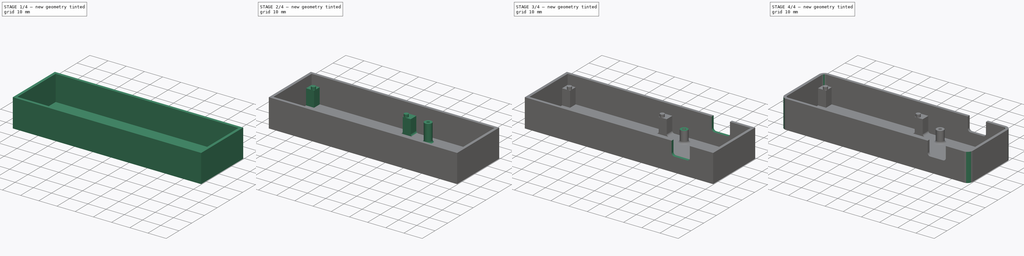
[diagram: build sequence overview — one tinted view per stage of 4, left to right]
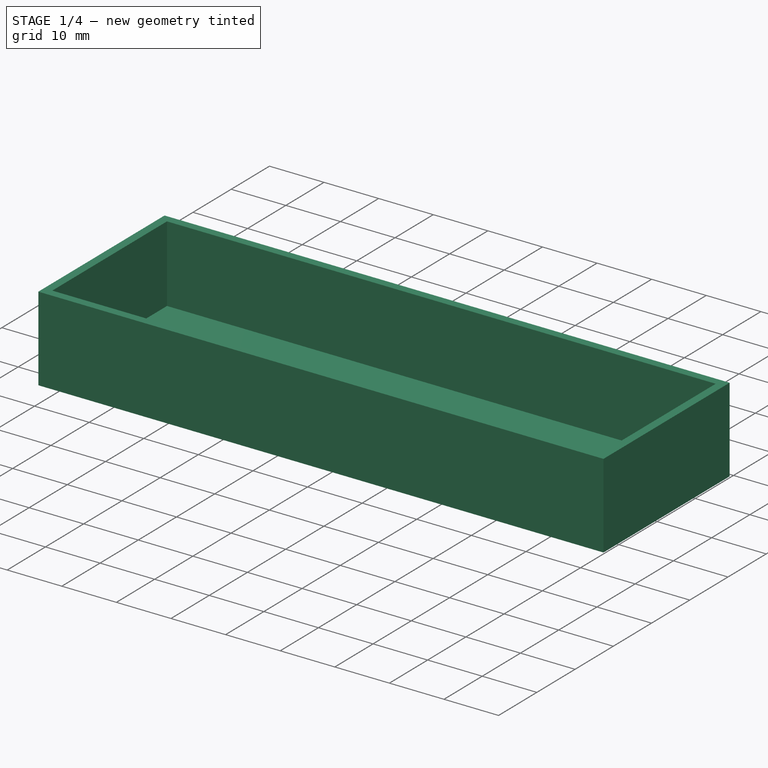
[diagram: stage 1 of 4 — iso view after this stage's code; geometry added in this stage tinted green]
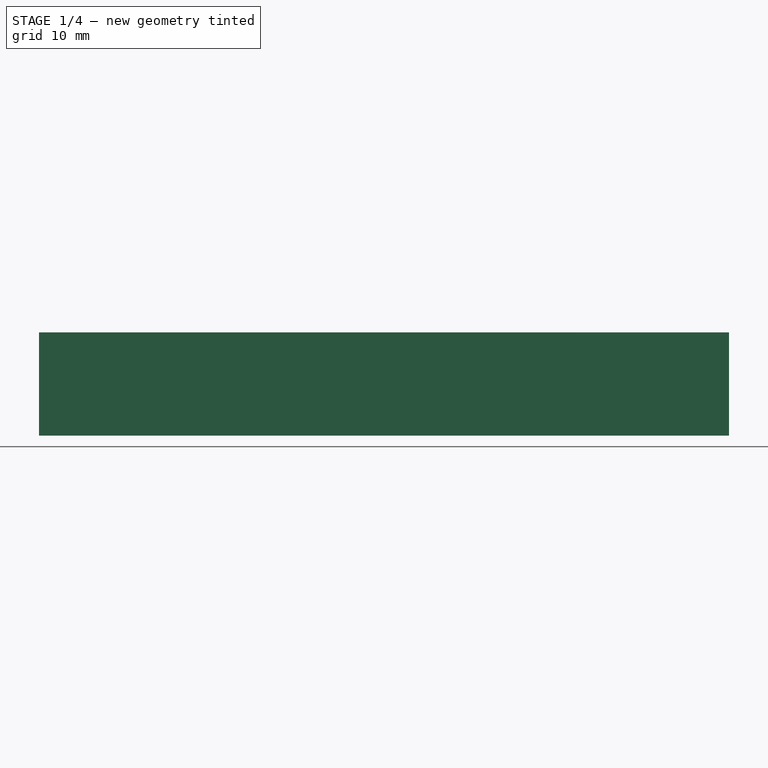
[diagram: stage 1 of 4 — front view after this stage's code; geometry added in this stage tinted green]
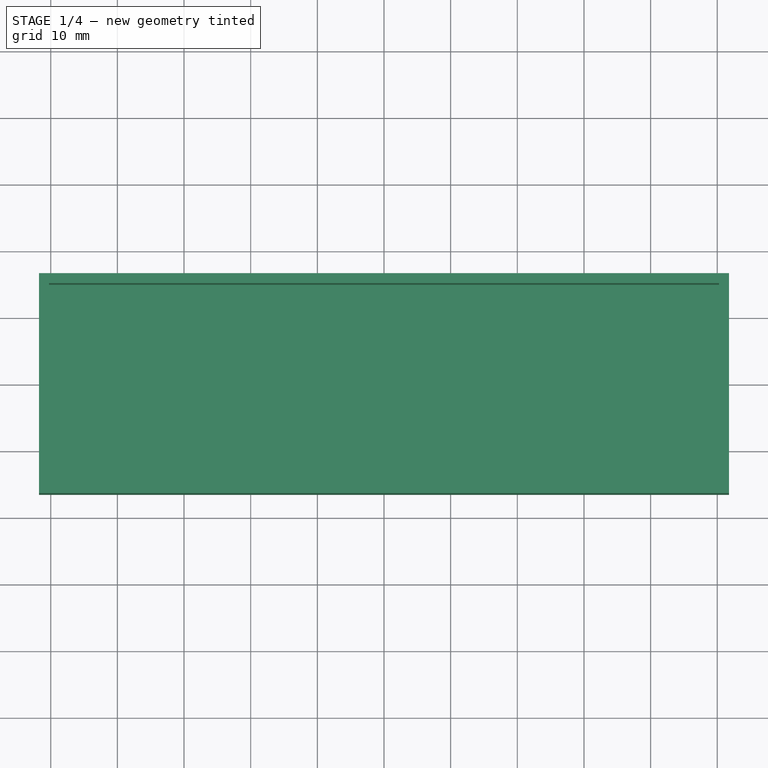
[diagram: stage 1 of 4 — top view after this stage's code; geometry added in this stage tinted green]
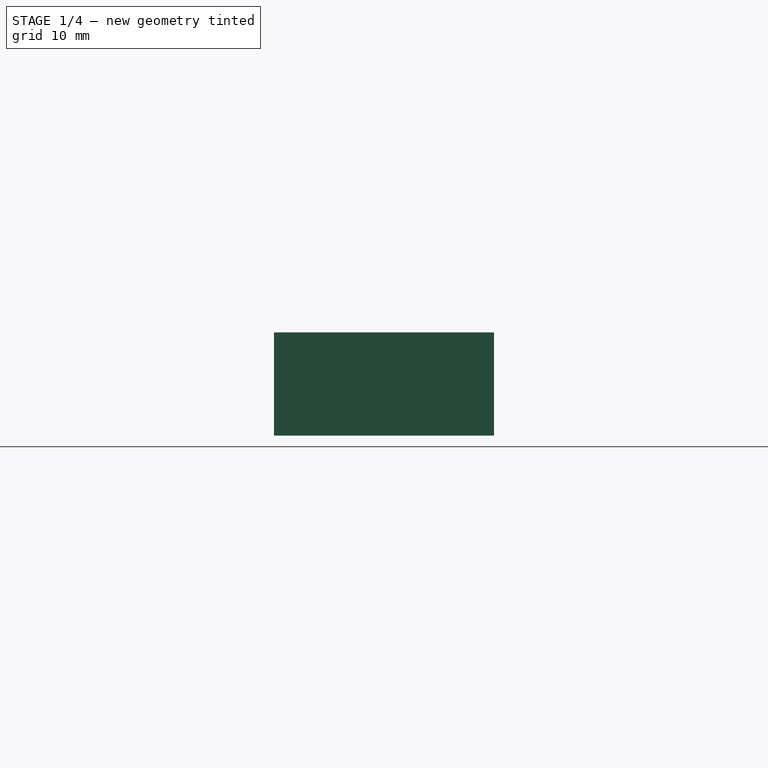
[diagram: stage 1 of 4 — right view after this stage's code; geometry added in this stage tinted green]
FCSTD DOCUMENT  (FreeCAD 0.19R23463 (Git))
Label: light-alarm-housing
License: All rights reserved
LicenseURL: http://en.wikipedia.org/wiki/All_rights_reserved
objects: Sketcher::SketchObject×7, PartDesign::Pad×4, PartDesign::Fillet×4, PartDesign::Pocket×2, Spreadsheet::Sheet×1, PartDesign::Body×1
note: 28 computed .brp shape members not serialized (recipe doc carries the construction recipe); baked Part::Feature solids carry a one-line shape summary decoded from their .brp

FEATURE [Sketcher::SketchObject] Sketch  label="MasterSketch"
  MapMode = 5
  Support = -> [XY_Plane]
  expr: Constraints[115] = Spreadsheet.wall_thickness
  expr: Constraints[89] = Spreadsheet.screw_dia
  expr: Constraints[84] = Spreadsheet.grove_height / 4 * 3
  expr: Constraints[85] = Spreadsheet.grove_outer_dia
  expr: Constraints[36] = Spreadsheet.hole_long_distance
  expr: Constraints[33] = Spreadsheet.hole_short_distance / 2
  expr: Constraints[79] = Spreadsheet.board_gap
  expr: Constraints[55] = Spreadsheet.board_width
  expr: Constraints[45] = Spreadsheet.board_hook_dia
  expr: Constraints[75] = Spreadsheet.grove_height
  expr: Constraints[37] = Spreadsheet.screw_dia
  expr: Constraints[65] = Spreadsheet.wall_thickness + Spreadsheet.board_gap
  expr: Constraints[54] = Spreadsheet.board_length
  expr: Constraints[74] = Spreadsheet.grove_width
  sketch-geometry (60):
    g0: LineSegment StartX=-51.75 StartY=16.5 StartZ=0 EndX=51.75 EndY=16.5 EndZ=0
    g1: LineSegment StartX=51.75 StartY=16.5 StartZ=0 EndX=51.75 EndY=-16.5 EndZ=0
    g2: LineSegment StartX=51.75 StartY=-16.5 StartZ=0 EndX=-51.75 EndY=-16.5 EndZ=0
    g3: LineSegment StartX=-51.75 StartY=-16.5 StartZ=0 EndX=-51.75 EndY=16.5 EndZ=0
    g4: Circle CenterX=-47 CenterY=11.75 CenterZ=0 NormalX=0 NormalY=0 NormalZ=1 AngleXU=0 Radius=0.75
    g5: Circle CenterX=-47 CenterY=-11.75 CenterZ=0 NormalX=0 NormalY=0 NormalZ=1 AngleXU=0 Radius=0.75
    g6: Circle CenterX=4 CenterY=11.75 CenterZ=0 NormalX=0 NormalY=0 NormalZ=1 AngleXU=0 Radius=0.75
    g7: Circle CenterX=4 CenterY=-11.75 CenterZ=0 NormalX=0 NormalY=0 NormalZ=1 AngleXU=0 Radius=0.75
    g8: LineSegment StartX=-47 StartY=11.75 StartZ=0 EndX=-47 EndY=16.5 EndZ=0
    g9: LineSegment StartX=-47 StartY=11.75 StartZ=0 EndX=-51.75 EndY=11.75 EndZ=0
    g10: LineSegment StartX=4 StartY=11.75 StartZ=0 EndX=4 EndY=16.5 EndZ=0
    g11: LineSegment StartX=4 StartY=11.75 StartZ=0 EndX=51.75 EndY=11.75 EndZ=0
    g12: LineSegment StartX=-47 StartY=11.75 StartZ=0 EndX=-47 EndY=0 EndZ=0
    g13: LineSegment StartX=4 StartY=11.75 StartZ=0 EndX=4 EndY=0 EndZ=0
    g14: LineSegment StartX=-47 StartY=11.75 StartZ=0 EndX=4 EndY=11.75 EndZ=0
    g15: Circle CenterX=-47 CenterY=11.75 CenterZ=0 NormalX=0 NormalY=0 NormalZ=1 AngleXU=0 Radius=1.15
    g16: Circle CenterX=-47 CenterY=-11.75 CenterZ=0 NormalX=0 NormalY=0 NormalZ=1 AngleXU=0 Radius=1.15
    g17: Circle CenterX=4 CenterY=-11.75 CenterZ=0 NormalX=0 NormalY=0 NormalZ=1 AngleXU=0 Radius=1.15
    g18: Circle CenterX=4 CenterY=11.75 CenterZ=0 NormalX=0 NormalY=0 NormalZ=1 AngleXU=0 Radius=1.15
    g19: LineSegment StartX=-49.25 StartY=14.1 StartZ=0 EndX=6.25 EndY=14.1 EndZ=0
    g20: LineSegment StartX=6.25 StartY=14.1 StartZ=0 EndX=6.25 EndY=-14.1 EndZ=0
    g21: LineSegment StartX=6.25 StartY=-14.1 StartZ=0 EndX=-49.25 EndY=-14.1 EndZ=0
    g22: LineSegment StartX=-49.25 StartY=-14.1 StartZ=0 EndX=-49.25 EndY=14.1 EndZ=0
    g23: LineSegment StartX=-47 StartY=-11.75 StartZ=0 EndX=-49.25 EndY=-11.75 EndZ=0
    g24: LineSegment StartX=4 StartY=-11.75 StartZ=0 EndX=6.25 EndY=-11.75 EndZ=0
    g25: LineSegment StartX=-49.25 StartY=-14.1 StartZ=0 EndX=-51.75 EndY=-14.1 EndZ=0
    g26: LineSegment StartX=7.25 StartY=10 StartZ=0 EndX=47.25 EndY=10 EndZ=0
    g27: LineSegment StartX=47.25 StartY=10 StartZ=0 EndX=47.25 EndY=-10 EndZ=0
    g28: LineSegment StartX=47.25 StartY=-10 StartZ=0 EndX=7.25 EndY=-10 EndZ=0
    g29: LineSegment StartX=7.25 StartY=-10 StartZ=0 EndX=7.25 EndY=10 EndZ=0
    g30: LineSegment StartX=7.25 StartY=-10 StartZ=0 EndX=6.25 EndY=-10 EndZ=0
    g31: Circle CenterX=17.25 CenterY=10 CenterZ=0 NormalX=0 NormalY=0 NormalZ=1 AngleXU=0 Radius=2
    g32: Circle CenterX=17.25 CenterY=-10 CenterZ=0 NormalX=0 NormalY=0 NormalZ=1 AngleXU=0 Radius=2
    g33: Circle CenterX=17.25 CenterY=-10 CenterZ=0 NormalX=0 NormalY=0 NormalZ=1 AngleXU=0 Radius=0.75
    g34: Circle CenterX=17.25 CenterY=10 CenterZ=0 NormalX=0 NormalY=0 NormalZ=1 AngleXU=0 Radius=0.75
    g35: Circle CenterX=47.25 CenterY=0 CenterZ=0 NormalX=0 NormalY=0 NormalZ=1 AngleXU=0 Radius=2
    g36: Circle CenterX=47.25 CenterY=0 CenterZ=0 NormalX=0 NormalY=0 NormalZ=1 AngleXU=0 Radius=0.75
    g37: LineSegment StartX=49.25 StartY=0 StartZ=0 EndX=51.75 EndY=0 EndZ=0
    g38: LineSegment StartX=-50.25 StartY=15 StartZ=0 EndX=50.25 EndY=15 EndZ=0
    g39: LineSegment StartX=50.25 StartY=15 StartZ=0 EndX=50.25 EndY=-15 EndZ=0
    g40: LineSegment StartX=50.25 StartY=-15 StartZ=0 EndX=-50.25 EndY=-15 EndZ=0
    g41: LineSegment StartX=-50.25 StartY=-15 StartZ=0 EndX=-50.25 EndY=15 EndZ=0
    g42: LineSegment StartX=-50.25 StartY=15 StartZ=0 EndX=-51.75 EndY=15 EndZ=0
    g43: LineSegment StartX=-50.25 StartY=15 StartZ=0 EndX=-50.25 EndY=16.5 EndZ=0
    g44: LineSegment StartX=-50.25 StartY=15 StartZ=0 EndX=-45.85 EndY=15 EndZ=0
    g45: LineSegment StartX=-45.85 StartY=15 StartZ=0 EndX=-45.85 EndY=10.6 EndZ=0
    g46: LineSegment StartX=-45.85 StartY=10.6 StartZ=0 EndX=-50.25 EndY=10.6 EndZ=0
    g47: LineSegment StartX=-50.25 StartY=10.6 StartZ=0 EndX=-50.25 EndY=15 EndZ=0
    g48: LineSegment StartX=-50.25 StartY=-15 StartZ=0 EndX=-45.85 EndY=-15 EndZ=0
    g49: LineSegment StartX=-45.85 StartY=-15 StartZ=0 EndX=-45.85 EndY=-10.6 EndZ=0
    g50: LineSegment StartX=-45.85 StartY=-10.6 StartZ=0 EndX=-50.25 EndY=-10.6 EndZ=0
    g51: LineSegment StartX=-50.25 StartY=-10.6 StartZ=0 EndX=-50.25 EndY=-15 EndZ=0
    g52: LineSegment StartX=7.25 StartY=15 StartZ=0 EndX=2.85 EndY=15 EndZ=0
    g53: LineSegment StartX=2.85 StartY=15 StartZ=0 EndX=2.85 EndY=10.6 EndZ=0
    g54: LineSegment StartX=2.85 StartY=10.6 StartZ=0 EndX=7.25 EndY=10.6 EndZ=0
    g55: LineSegment StartX=7.25 StartY=10.6 StartZ=0 EndX=7.25 EndY=15 EndZ=0
    g56: LineSegment StartX=7.25 StartY=-15 StartZ=0 EndX=2.85 EndY=-15 EndZ=0
    g57: LineSegment StartX=2.85 StartY=-15 StartZ=0 EndX=2.85 EndY=-10.6 EndZ=0
    g58: LineSegment StartX=2.85 StartY=-10.6 StartZ=0 EndX=7.25 EndY=-10.6 EndZ=0
    g59: LineSegment StartX=7.25 StartY=-10.6 StartZ=0 EndX=7.25 EndY=-15 EndZ=0
  constraints (163):
    c: Coincident(g0,g1)
    c: Coincident(g1,g2)
    c: Coincident(g2,g3)
    c: Coincident(g3,g0)
    c: Horizontal(g2)
    c: Vertical(g1)
    c: Symmetric(g0,g0,g-2)
    c: Symmetric(g0,g2,g-1)
    c: Equal(g5,g4)
    c: Equal(g6,g4)
    c: Equal(g4,g7)
    c: Symmetric(g4,g5,g-1)
    c: Symmetric(g6,g7,g-1)
    c: Coincident(g8,g4)
    c: PointOnObject(g8,g0)
    c: Vertical(g8)
    c: Coincident(g9,g4)
    c: PointOnObject(g9,g3)
    c: Horizontal(g9)
    c: Coincident(g10,g6)
    c: PointOnObject(g10,g0)
    c: Vertical(g10)
    c: Coincident(g11,g6)
    c: PointOnObject(g11,g1)
    c: Horizontal(g11)
    c: Equal(g8,g9)
    c: Coincident(g12,g4)
    c: Vertical(g12)
    c: Coincident(g13,g6)
    c: PointOnObject(g13,g-1)
    c: Vertical(g13)
    c: Equal(g13,g12)
    c: PointOnObject(g12,g-1)
    c: Distance(g12) = 11.75
    c: Coincident(g14,g4)
    c: Coincident(g14,g6)
    c: Distance(g14) = 51
    c: Diameter(g5) = 1.5
    c: Coincident(g15,g4)
    c: Coincident(g16,g5)
    c: Coincident(g17,g7)
    c: Coincident(g18,g6)
    c: Equal(g18,g17)
    c: Equal(g17,g15)
    c: Equal(g15,g16)
    c: Diameter(g16) = 2.3
    c: Coincident(g19,g20)
    c: Coincident(g20,g21)
    c: Coincident(g21,g22)
    c: Coincident(g22,g19)
    c: Horizontal(g19)
    c: Horizontal(g21)
    c: Vertical(g20)
    c: Symmetric(g19,g21,g-1)
    c: Distance(g19,g19) = 55.5
    c: Distance(g20) = 28.2
    c: Coincident(g23,g5)
    c: PointOnObject(g23,g22)
    c: Horizontal(g23)
    c: Coincident(g24,g7)
    c: PointOnObject(g24,g20)
    c: Horizontal(g24)
    c: Equal(g24,g23)
    c: PointOnObject(g25,g3)
    c: Horizontal(g25)
    c: Distance(g25) = 2.5
    c: Coincident(g25,g21)
    c: Coincident(g26,g27)
    c: Coincident(g27,g28)
    c: Coincident(g28,g29)
    c: Coincident(g29,g26)
    c: Horizontal(g26)
    c: Horizontal(g28)
    c: Vertical(g27)
    c: Distance(g27) = 20
    c: Distance(g28) = 40
    c: Coincident(g30,g28)
    c: PointOnObject(g30,g20)
    c: Horizontal(g30)
    c: Distance(g30) = 1
    c: Symmetric(g26,g28,g-1)
    c: PointOnObject(g31,g26)
    c: Equal(g32,g31)
    c: Symmetric(g31,g32,g-1)
    c: Distance(g31,g26) = 30
    c: Diameter(g32) = 4
    c: Coincident(g33,g32)
    c: Coincident(g34,g31)
    c: Equal(g34,g33)
    c: Diameter(g33) = 1.5
    c: PointOnObject(g35,g27)
    c: Coincident(g36,g35)
    c: Equal(g36,g34)
    c: Equal(g35,g31)
    c: PointOnObject(g35,g-1)
    c: PointOnObject(g37,g35)
    c: PointOnObject(g37,g1)
    c: Horizontal(g37)
    c: PointOnObject(g37,g-1)
    c: Equal(g37,g25)
    c: Coincident(g38,g39)
    c: Coincident(g39,g40)
    c: Coincident(g40,g41)
    c: Coincident(g41,g38)
    c: Horizontal(g40)
    c: Vertical(g41)
    c: Symmetric(g39,g38,g-1)
    c: Symmetric(g38,g38,g-2)
    c: Coincident(g42,g38)
    c: PointOnObject(g42,g3)
    c: Coincident(g43,g38)
    c: PointOnObject(g43,g0)
    c: Vertical(g43)
    c: Horizontal(g42)
    c: Equal(g43,g42)
    c: Distance(g43) = 1.5
    c: Coincident(g44,g45)
    c: Coincident(g45,g46)
    c: Coincident(g46,g47)
    c: Coincident(g47,g44)
    c: Horizontal(g44)
    c: Horizontal(g46)
    c: Vertical(g45)
    c: Vertical(g47)
    c: Coincident(g44,g38)
    c: Coincident(g48,g49)
    c: Coincident(g49,g50)
    c: Coincident(g50,g51)
    c: Coincident(g51,g48)
    c: Horizontal(g48)
    c: Horizontal(g50)
    c: Vertical(g49)
    c: Vertical(g51)
    c: PointOnObject(g50,g41)
    c: PointOnObject(g48,g40)
    c: Tangent(g15,g45)
    c: Tangent(g46,g15)
    c: Tangent(g50,g16)
    c: Tangent(g49,g16)
    c: Coincident(g52,g53)
    c: Coincident(g53,g54)
    c: Coincident(g54,g55)
    c: Coincident(g55,g52)
    c: Horizontal(g52)
    c: Horizontal(g54)
    c: Vertical(g53)
    c: Vertical(g55)
    c: PointOnObject(g52,g38)
    c: Coincident(g56,g57)
    c: Coincident(g57,g58)
    c: Coincident(g58,g59)
    c: Coincident(g59,g56)
    c: Horizontal(g56)
    c: Horizontal(g58)
    c: Vertical(g57)
    c: Vertical(g59)
    c: PointOnObject(g56,g40)
    c: Tangent(g57,g17)
    c: Tangent(g58,g17)
    c: Tangent(g54,g18)
    c: Tangent(g53,g18)
    c: Equal(g54,g58)
    c: Equal(g58,g50)
FEATURE [Spreadsheet::Sheet] Spreadsheet
  cells = A2=hole short distance; B2(hole_short_distance)=23.5; A3=hole long distance; B3(hole_long_distance)=51; A4=screw dia; B4(screw_dia)=1.5; A5=wall thickness; B5(wall_thickness)=1.5; A6=screw walls; B6(wall_screws)=2.5; A7=board width; B7(board_width)=28.2; A8=board length; B8(board_length)=55.5; A9=gap; B9(board_gap)=1; A10=grove width; B10(grove_width)=20; A11=grove height; B11(grove_height)=40; A12=grove outer dia; B12(grove_outer_dia)=4; A13=board clearance; B13(board_clearance)=8.5; A14=board height; B14(board_height)=14; A15=board hook dia; B15(board_hook_dia)=2.3; A16=board thickness; B16(board_thickness)=1.5; A17=grove clearance; B17(grove_clearance)=5
FEATURE [Sketcher::SketchObject] Sketch001
  ExternalGeometry = -> [Sketch]
  MapMode = 5
  Support = -> [XY_Plane]
  sketch-geometry (4):
    g0: LineSegment StartX=-51.75 StartY=16.5 StartZ=0 EndX=51.75 EndY=16.5 EndZ=0
    g1: LineSegment StartX=51.75 StartY=16.5 StartZ=0 EndX=51.75 EndY=-16.5 EndZ=0
    g2: LineSegment StartX=51.75 StartY=-16.5 StartZ=0 EndX=-51.75 EndY=-16.5 EndZ=0
    g3: LineSegment StartX=-51.75 StartY=-16.5 StartZ=0 EndX=-51.75 EndY=16.5 EndZ=0
  constraints (10):
    c: Coincident(g0,g1)
    c: Coincident(g1,g2)
    c: Coincident(g2,g3)
    c: Coincident(g3,g0)
    c: Horizontal(g0)
    c: Horizontal(g2)
    c: Vertical(g1)
    c: Vertical(g3)
    c: Symmetric(g1,g0,g-1)
    c: Coincident(g0,g-3)
FEATURE [PartDesign::Pad] Pad
  Direction = (1,1,1)
  Length = 1.5
  Length2 = 100
  Profile = -> Sketch001
  Reversed = true
  Type = 0
  expr: Length = Spreadsheet.wall_thickness
FEATURE [Sketcher::SketchObject] Sketch002
  ExternalGeometry = -> [Sketch]
  MapMode = 5
  Support = -> [Pad]
  sketch-geometry (8):
    g0: LineSegment StartX=-50.25 StartY=15 StartZ=0 EndX=50.25 EndY=15 EndZ=0
    g1: LineSegment StartX=50.25 StartY=15 StartZ=0 EndX=50.25 EndY=-15 EndZ=0
    g2: LineSegment StartX=50.25 StartY=-15 StartZ=0 EndX=-50.25 EndY=-15 EndZ=0
    g3: LineSegment StartX=-50.25 StartY=-15 StartZ=0 EndX=-50.25 EndY=15 EndZ=0
    g4: LineSegment StartX=-51.75 StartY=16.5 StartZ=0 EndX=51.75 EndY=16.5 EndZ=0
    g5: LineSegment StartX=51.75 StartY=16.5 StartZ=0 EndX=51.75 EndY=-16.5 EndZ=0
    g6: LineSegment StartX=51.75 StartY=-16.5 StartZ=0 EndX=-51.75 EndY=-16.5 EndZ=0
    g7: LineSegment StartX=-51.75 StartY=-16.5 StartZ=0 EndX=-51.75 EndY=16.5 EndZ=0
  constraints (20):
    c: Coincident(g0,g1)
    c: Coincident(g1,g2)
    c: Coincident(g2,g3)
    c: Coincident(g3,g0)
    c: Horizontal(g0)
    c: Horizontal(g2)
    c: Vertical(g1)
    c: Vertical(g3)
    c: Coincident(g0,g-4)
    c: Coincident(g4,g5)
    c: Coincident(g5,g6)
    c: Coincident(g6,g7)
    c: Coincident(g7,g4)
    c: Horizontal(g4)
    c: Horizontal(g6)
    c: Vertical(g5)
    c: Vertical(g7)
    c: Coincident(g4,g-3)
    c: Symmetric(g1,g0,g-1)
    c: Symmetric(g4,g5,g-1)
FEATURE [PartDesign::Pad] Pad001
  BaseFeature = -> Pad
  Direction = (1,1,1)
  Length = 14
  Length2 = 100
  Profile = -> Sketch002
  Type = 0
  expr: Length = Spreadsheet.board_height
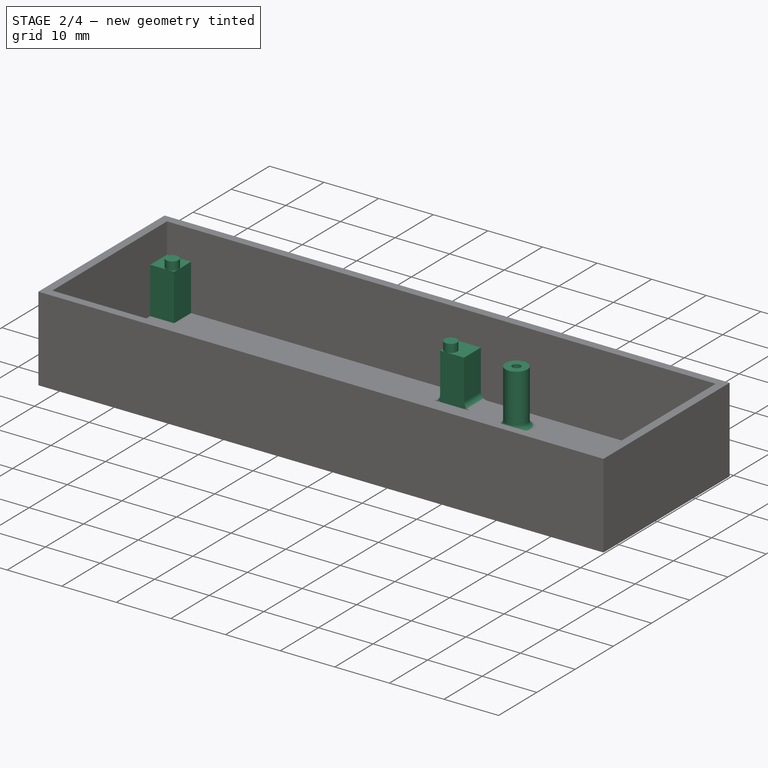
[diagram: stage 2 of 4 — iso view after this stage's code; geometry added in this stage tinted green]
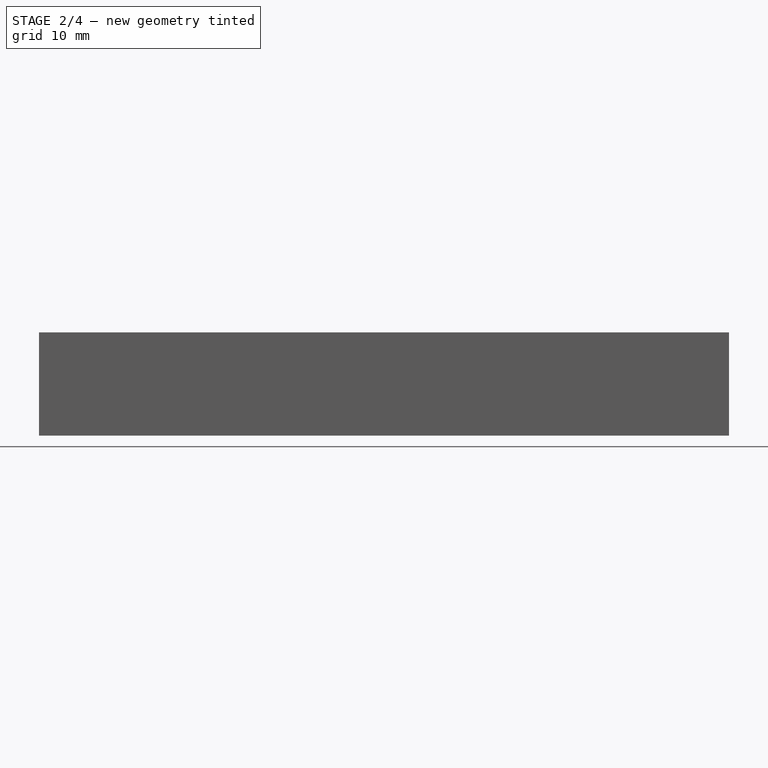
[diagram: stage 2 of 4 — front view after this stage's code; geometry added in this stage tinted green]
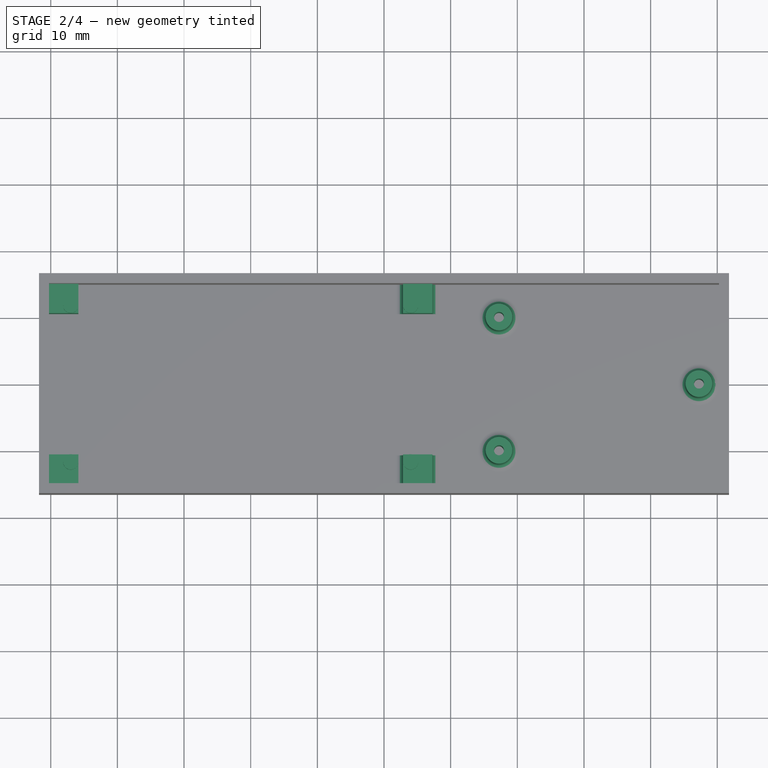
[diagram: stage 2 of 4 — top view after this stage's code; geometry added in this stage tinted green]
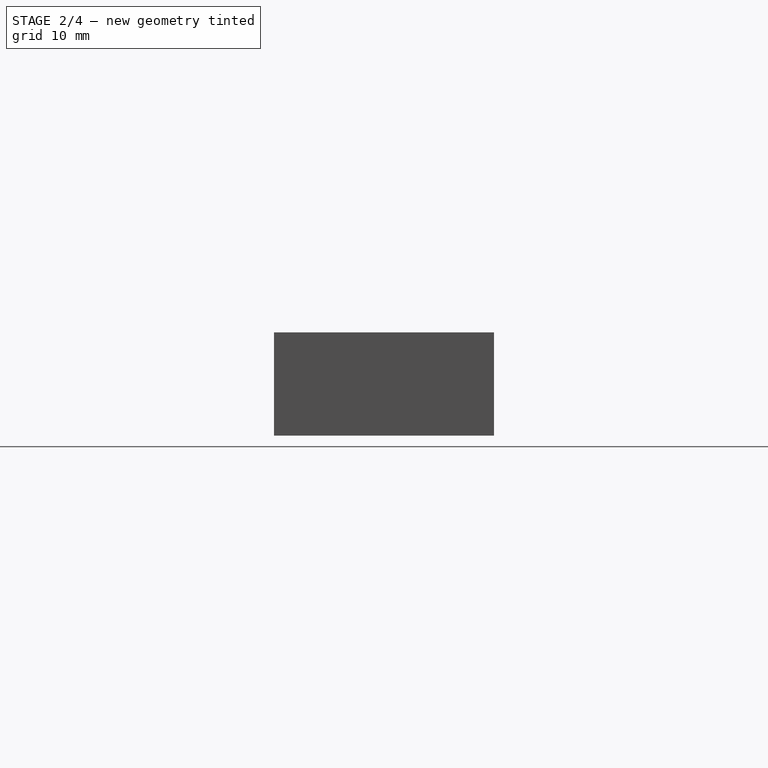
[diagram: stage 2 of 4 — right view after this stage's code; geometry added in this stage tinted green]
FEATURE [Sketcher::SketchObject] Sketch003
  ExternalGeometry = -> [Sketch]
  MapMode = 5
  Support = -> [Pad001]
  sketch-geometry (10):
    g0: Circle CenterX=4 CenterY=-11.75 CenterZ=0 NormalX=0 NormalY=0 NormalZ=1 AngleXU=0 Radius=1.15
    g1: Circle CenterX=-47 CenterY=-11.75 CenterZ=0 NormalX=0 NormalY=0 NormalZ=1 AngleXU=0 Radius=1.15
    g2: Circle CenterX=-47 CenterY=11.75 CenterZ=0 NormalX=0 NormalY=0 NormalZ=1 AngleXU=0 Radius=1.15
    g3: Circle CenterX=4 CenterY=11.75 CenterZ=0 NormalX=0 NormalY=0 NormalZ=1 AngleXU=0 Radius=1.15
    g4: Circle CenterX=17.25 CenterY=10 CenterZ=0 NormalX=0 NormalY=0 NormalZ=1 AngleXU=0 Radius=2
    g5: Circle CenterX=17.25 CenterY=10 CenterZ=0 NormalX=0 NormalY=0 NormalZ=1 AngleXU=0 Radius=0.75
    g6: Circle CenterX=17.25 CenterY=-10 CenterZ=0 NormalX=0 NormalY=0 NormalZ=1 AngleXU=0 Radius=0.75
    g7: Circle CenterX=17.25 CenterY=-10 CenterZ=0 NormalX=0 NormalY=0 NormalZ=1 AngleXU=0 Radius=2
    g8: Circle CenterX=47.25 CenterY=0 CenterZ=0 NormalX=0 NormalY=0 NormalZ=1 AngleXU=0 Radius=0.75
    g9: Circle CenterX=47.25 CenterY=0 CenterZ=0 NormalX=0 NormalY=0 NormalZ=1 AngleXU=0 Radius=2
  constraints (20):
    c: Coincident(g0,g-5)
    c: Coincident(g1,g-4)
    c: Coincident(g2,g-3)
    c: Coincident(g3,g-6)
    c: Equal(g3,g-6)
    c: Equal(g2,g1)
    c: Equal(g1,g0)
    c: Equal(g3,g0)
    c: Coincident(g4,g-10)
    c: Coincident(g5,g4)
    c: Coincident(g6,g-8)
    c: Coincident(g7,g6)
    c: Coincident(g8,g-12)
    c: Coincident(g9,g8)
    c: Equal(g6,g5)
    c: Equal(g5,g8)
    c: Equal(g8,g-9)
    c: Equal(g4,g7)
    c: Equal(g7,g9)
    c: Equal(g9,g-10)
FEATURE [PartDesign::Pad] Pad002
  BaseFeature = -> Pad001
  Direction = (1,1,1)
  Length = 10
  Length2 = 100
  Profile = -> Sketch003
  Type = 0
  expr: Length = Spreadsheet.board_clearance + Spreadsheet.board_thickness
FEATURE [Sketcher::SketchObject] Sketch004
  ExternalGeometry = -> [Sketch,Pad002]
  MapMode = 5
  Support = -> [Pad002]
  sketch-geometry (16):
    g0: LineSegment StartX=-45.85 StartY=10.6 StartZ=0 EndX=-50.25 EndY=10.6 EndZ=0
    g1: LineSegment StartX=-50.25 StartY=10.6 StartZ=0 EndX=-50.25 EndY=15 EndZ=0
    g2: LineSegment StartX=-50.25 StartY=15 StartZ=0 EndX=-45.85 EndY=15 EndZ=0
    g3: LineSegment StartX=-45.85 StartY=15 StartZ=0 EndX=-45.85 EndY=10.6 EndZ=0
    g4: LineSegment StartX=-45.85 StartY=-10.6 StartZ=0 EndX=-50.25 EndY=-10.6 EndZ=0
    g5: LineSegment StartX=-50.25 StartY=-10.6 StartZ=0 EndX=-50.25 EndY=-15 EndZ=0
    g6: LineSegment StartX=-50.25 StartY=-15 StartZ=0 EndX=-45.85 EndY=-15 EndZ=0
    g7: LineSegment StartX=-45.85 StartY=-15 StartZ=0 EndX=-45.85 EndY=-10.6 EndZ=0
    g8: LineSegment StartX=2.85 StartY=10.6 StartZ=0 EndX=7.25 EndY=10.6 EndZ=0
    g9: LineSegment StartX=7.25 StartY=10.6 StartZ=0 EndX=7.25 EndY=15 EndZ=0
    g10: LineSegment StartX=7.25 StartY=15 StartZ=0 EndX=2.85 EndY=15 EndZ=0
    g11: LineSegment StartX=2.85 StartY=15 StartZ=0 EndX=2.85 EndY=10.6 EndZ=0
    g12: LineSegment StartX=2.85 StartY=-10.6 StartZ=0 EndX=7.25 EndY=-10.6 EndZ=0
    g13: LineSegment StartX=7.25 StartY=-10.6 StartZ=0 EndX=7.25 EndY=-15 EndZ=0
    g14: LineSegment StartX=7.25 StartY=-15 StartZ=0 EndX=2.85 EndY=-15 EndZ=0
    g15: LineSegment StartX=2.85 StartY=-15 StartZ=0 EndX=2.85 EndY=-10.6 EndZ=0
  constraints (40):
    c: Coincident(g0,g1)
    c: Coincident(g1,g2)
    c: Coincident(g2,g3)
    c: Coincident(g3,g0)
    c: Horizontal(g0)
    c: Horizontal(g2)
    c: Vertical(g1)
    c: Vertical(g3)
    c: Coincident(g0,g-3)
    c: Coincident(g1,g-7)
    c: Coincident(g4,g5)
    c: Coincident(g5,g6)
    c: Coincident(g6,g7)
    c: Coincident(g7,g4)
    c: Horizontal(g4)
    c: Horizontal(g6)
    c: Vertical(g5)
    c: Vertical(g7)
    c: Coincident(g4,g-4)
    c: Coincident(g5,g-10)
    c: Coincident(g8,g9)
    c: Coincident(g9,g10)
    c: Coincident(g10,g11)
    c: Coincident(g11,g8)
    c: Horizontal(g8)
    c: Horizontal(g10)
    c: Vertical(g9)
    c: Vertical(g11)
    c: Coincident(g8,g-8)
    c: Coincident(g9,g-12)
    c: Coincident(g12,g13)
    c: Coincident(g13,g14)
    c: Coincident(g14,g15)
    c: Coincident(g15,g12)
    c: Horizontal(g12)
    c: Horizontal(g14)
    c: Vertical(g13)
    c: Vertical(g15)
    c: Coincident(g12,g-9)
    c: Coincident(g13,g-11)
FEATURE [PartDesign::Pad] Pad003
  BaseFeature = -> Pad002
  Direction = (1,1,1)
  Length = 8.5
  Length2 = 100
  Profile = -> Sketch004
  Type = 0
  expr: Length = Spreadsheet.board_clearance
FEATURE [PartDesign::Fillet] Fillet
  Base = -> Pad003 [Edge72,Edge73,Edge71,Edge58,Edge57,Edge67,Edge66,Edge54,Edge70]
  BaseFeature = -> Pad003
  Radius = 1.15
  SupportTransform = false
  expr: Radius = Spreadsheet.board_hook_dia / 2
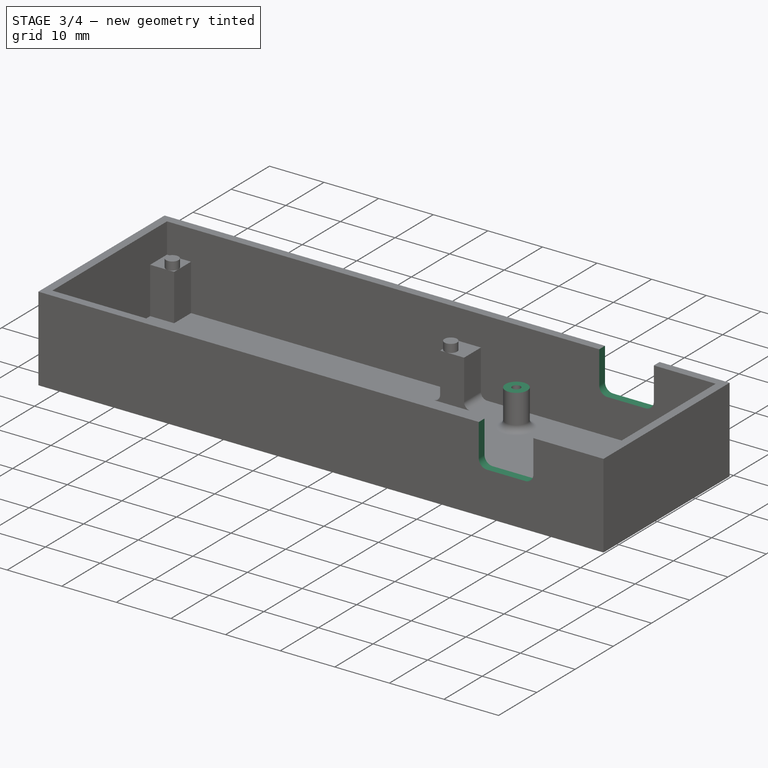
[diagram: stage 3 of 4 — iso view after this stage's code; geometry added in this stage tinted green]
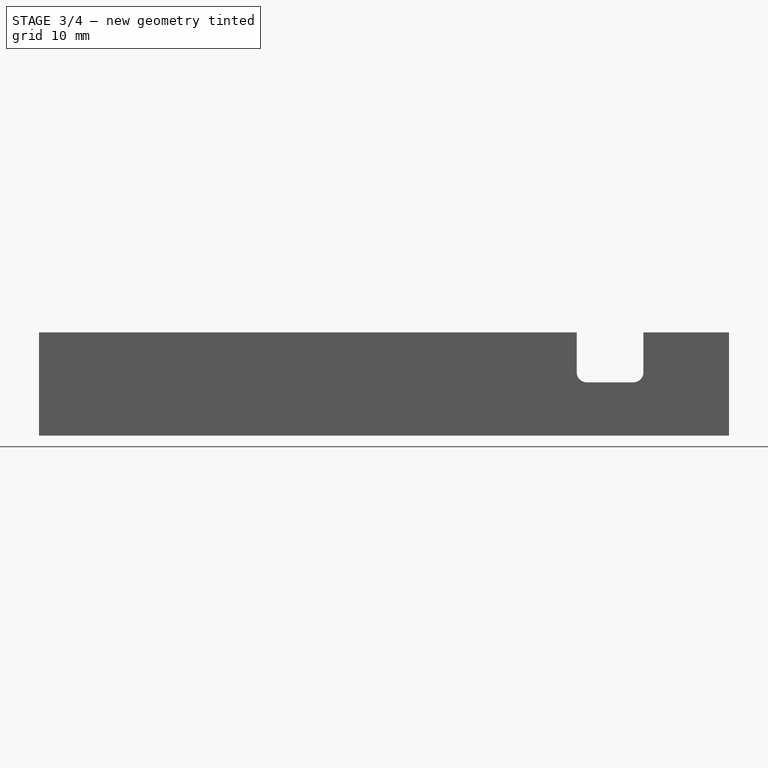
[diagram: stage 3 of 4 — front view after this stage's code; geometry added in this stage tinted green]
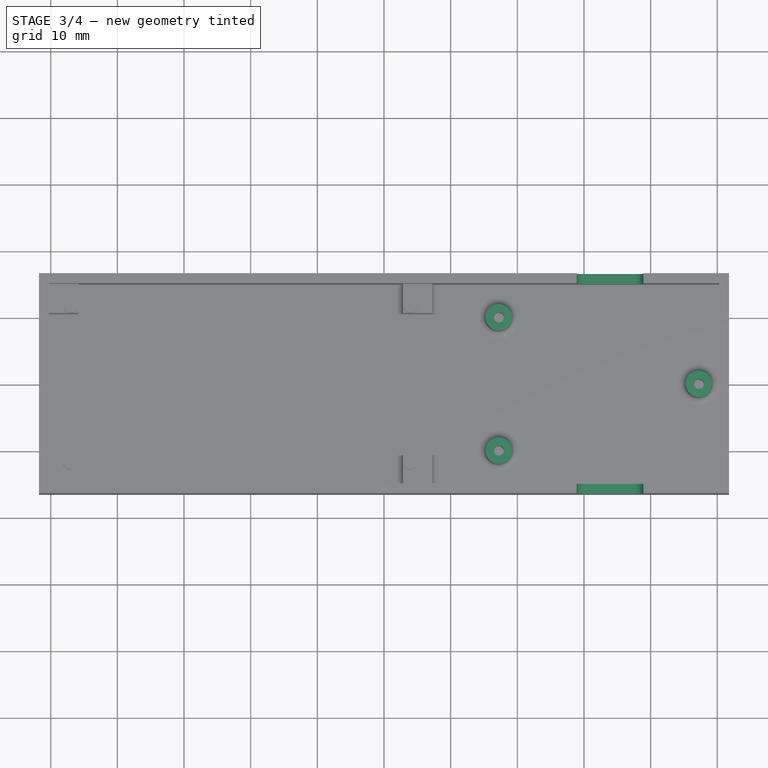
[diagram: stage 3 of 4 — top view after this stage's code; geometry added in this stage tinted green]
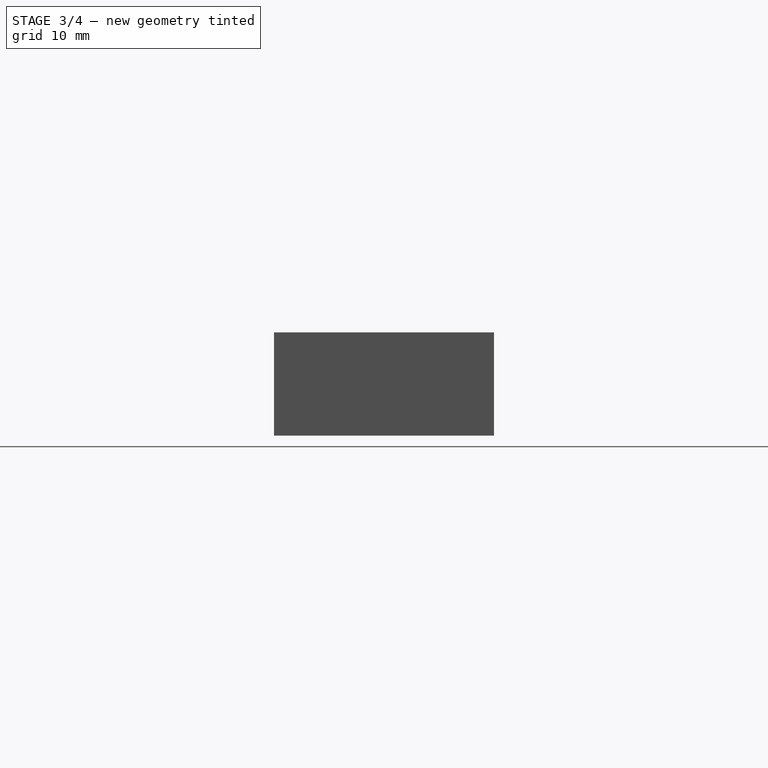
[diagram: stage 3 of 4 — right view after this stage's code; geometry added in this stage tinted green]
FEATURE [Sketcher::SketchObject] Sketch005
  ExternalGeometry = -> [Fillet]
  MapMode = 5
  Placement = pos=(0,0,10) rot=(0,0,1;0rad)
  Support = -> [Fillet]
  sketch-geometry (3):
    g0: Circle CenterX=17.25 CenterY=10 CenterZ=0 NormalX=0 NormalY=0 NormalZ=1 AngleXU=0 Radius=2
    g1: Circle CenterX=17.25 CenterY=-10 CenterZ=0 NormalX=0 NormalY=0 NormalZ=1 AngleXU=0 Radius=2
    g2: Circle CenterX=47.25 CenterY=0 CenterZ=0 NormalX=0 NormalY=0 NormalZ=1 AngleXU=0 Radius=2
  constraints (6):
    c: Coincident(g0,g-3)
    c: Coincident(g1,g-4)
    c: Coincident(g2,g-5)
    c: Equal(g2,g0)
    c: Equal(g0,g1)
    c: Equal(g1,g-4)
FEATURE [PartDesign::Pocket] Pocket
  BaseFeature = -> Fillet
  Length = 3.5
  Length2 = 100
  Profile = -> Sketch005
  Type = 0
  expr: Length = Spreadsheet.board_clearance - Spreadsheet.grove_clearance
FEATURE [Sketcher::SketchObject] Sketch006
  ExternalGeometry = -> [Pocket]
  MapMode = 5
  Placement = pos=(0,0,0) rot=(1,0,0;1.5708rad)
  Support = -> [XZ_Plane]
  sketch-geometry (9):
    g0: LineSegment StartX=18 StartY=6.5 StartZ=0 EndX=32.25 EndY=6.5 EndZ=0
    g1: LineSegment StartX=32.25 StartY=6.5 StartZ=0 EndX=46.5 EndY=6.5 EndZ=0
    g2: LineSegment StartX=32.25 StartY=6.5 StartZ=0 EndX=28.9167 EndY=6.5 EndZ=0
    g3: LineSegment StartX=32.25 StartY=6.5 StartZ=0 EndX=35.5833 EndY=6.5 EndZ=0
    g4: LineSegment StartX=35.5833 StartY=6.5 StartZ=0 EndX=38.9167 EndY=6.5 EndZ=0
    g5: LineSegment StartX=28.9167 StartY=6.5 StartZ=0 EndX=38.9167 EndY=6.5 EndZ=0
    g6: LineSegment StartX=38.9167 StartY=6.5 StartZ=0 EndX=38.9167 EndY=14 EndZ=0
    g7: LineSegment StartX=38.9167 StartY=14 StartZ=0 EndX=28.9167 EndY=14 EndZ=0
    g8: LineSegment StartX=28.9167 StartY=14 StartZ=0 EndX=28.9167 EndY=6.5 EndZ=0
  constraints (24):
    c: Coincident(g1,g0)
    c: Coincident(g1,g-4)
    c: Parallel(g0,g1)
    c: Equal(g1,g0)
    c: Coincident(g0,g-3)
    c: Coincident(g2,g0)
    c: Coincident(g3,g0)
    c: Coincident(g4,g3)
    c: Equal(g4,g3)
    c: Equal(g3,g2)
    c: Parallel(g2,g3)
    c: Parallel(g3,g4)
    c: Parallel(g4,g1)
    c: Distance(g3,g4) = 3.33333
    c: Coincident(g5,g6)
    c: Coincident(g6,g7)
    c: Coincident(g7,g8)
    c: Coincident(g8,g5)
    c: Horizontal(g7)
    c: Vertical(g6)
    c: Vertical(g8)
    c: Coincident(g5,g2)
    c: PointOnObject(g6,g-5)
    c: Coincident(g5,g4)
FEATURE [PartDesign::Pocket] Pocket001
  BaseFeature = -> Pocket
  Length = 33.2
  Length2 = 100
  Midplane = true
  Profile = -> Sketch006
  Type = 0
  expr: Length = Spreadsheet.board_width + Spreadsheet.board_gap * 2 + Spreadsheet.wall_thickness * 2
FEATURE [PartDesign::Fillet] Fillet001
  Base = -> Pocket001 [Edge77,Edge152,Edge75,Edge146]
  BaseFeature = -> Pocket001
  Radius = 1.5
  SupportTransform = false
  expr: Radius = Spreadsheet.wall_thickness
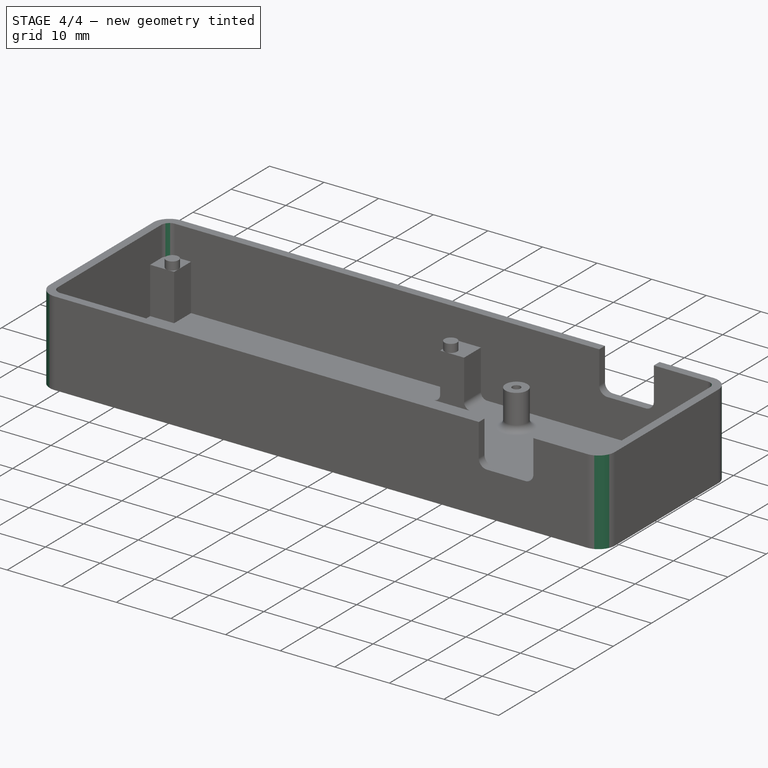
[diagram: stage 4 of 4 — iso view after this stage's code; geometry added in this stage tinted green]
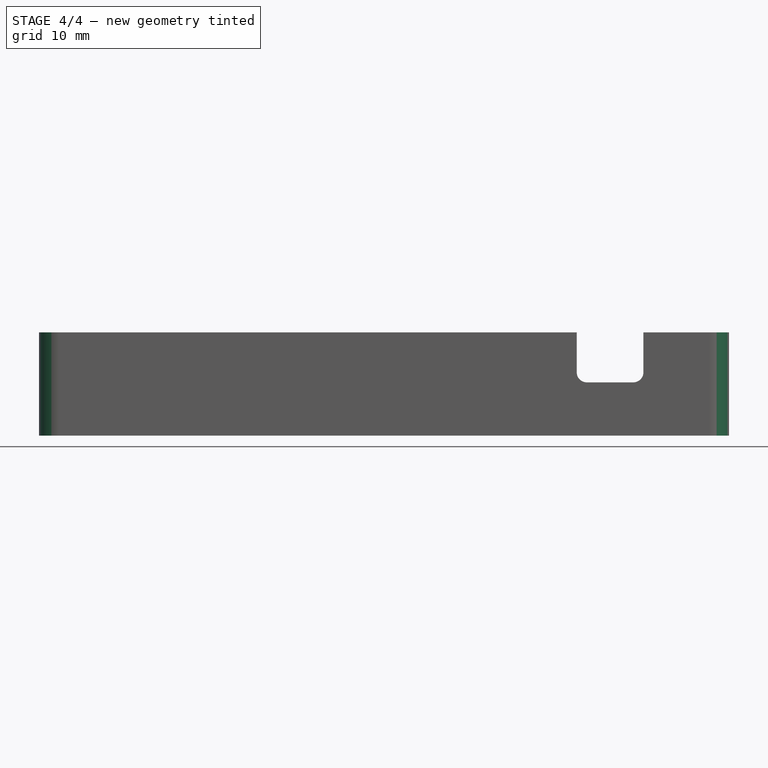
[diagram: stage 4 of 4 — front view after this stage's code; geometry added in this stage tinted green]
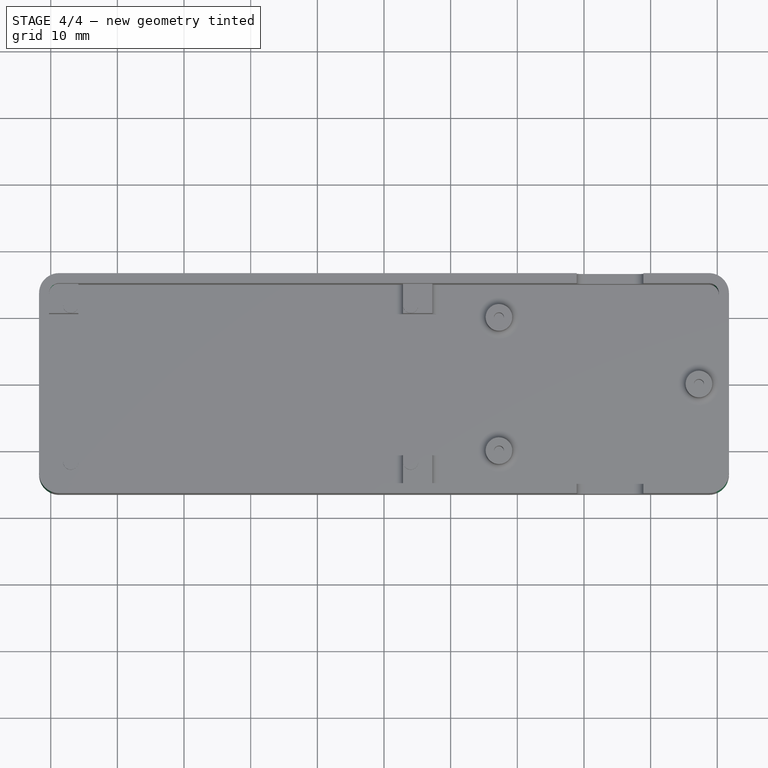
[diagram: stage 4 of 4 — top view after this stage's code; geometry added in this stage tinted green]
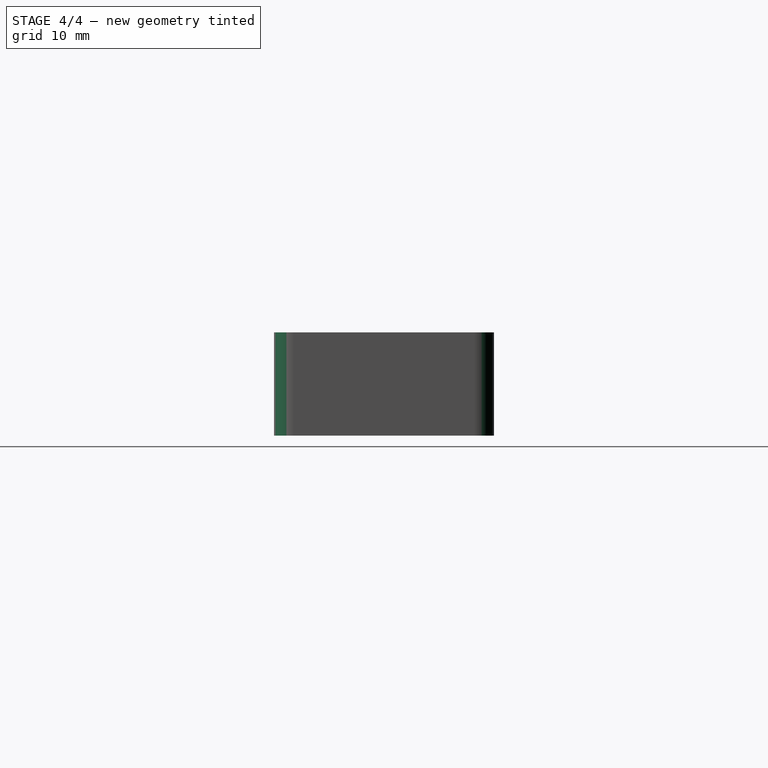
[diagram: stage 4 of 4 — right view after this stage's code; geometry added in this stage tinted green]
FEATURE [PartDesign::Fillet] Fillet002
  Base = -> Fillet001 [Edge82,Edge12,Edge37,Edge5]
  BaseFeature = -> Fillet001
  Radius = 1.5
  SupportTransform = false
  expr: Radius = Spreadsheet.wall_thickness
FEATURE [PartDesign::Fillet] Fillet003
  Base = -> Fillet002 [Edge101,Edge103,Edge124,Edge106]
  BaseFeature = -> Fillet002
  Radius = 3
  SupportTransform = false
  expr: Radius = Spreadsheet.wall_thickness * 2
FEATURE [PartDesign::Body] Body
  Group = -> [Sketch,Sketch001,Pad,Sketch002,Pad001,Sketch003,Pad002,Sketch004,Pad003,Fillet,Sketch005,Pocket,Sketch006,Pocket001,Fillet001,Fillet002,Fillet003]
  Origin = -> Origin
  Tip = -> Fillet003
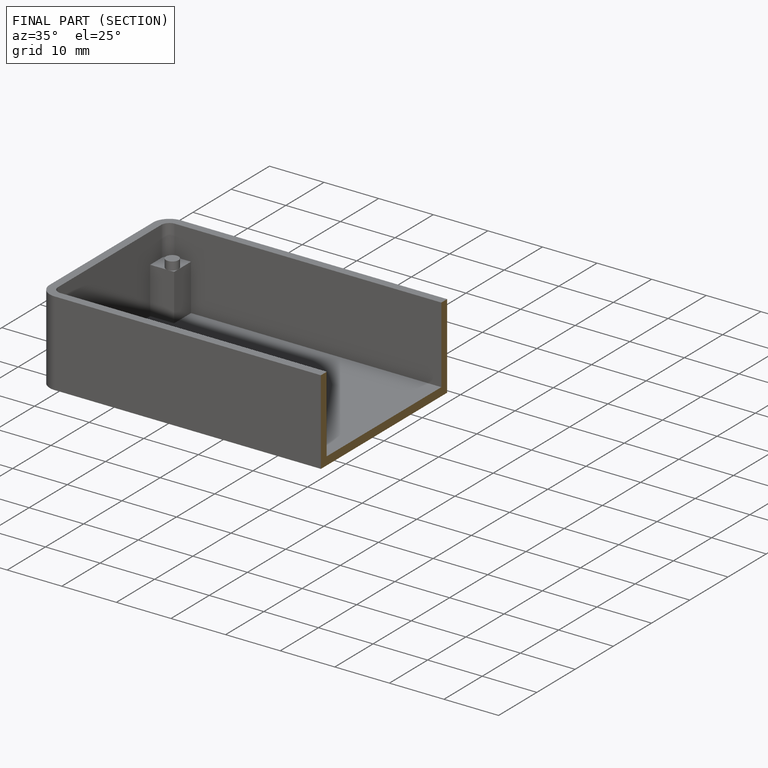
[diagram: finished part — half-section view (interior)]
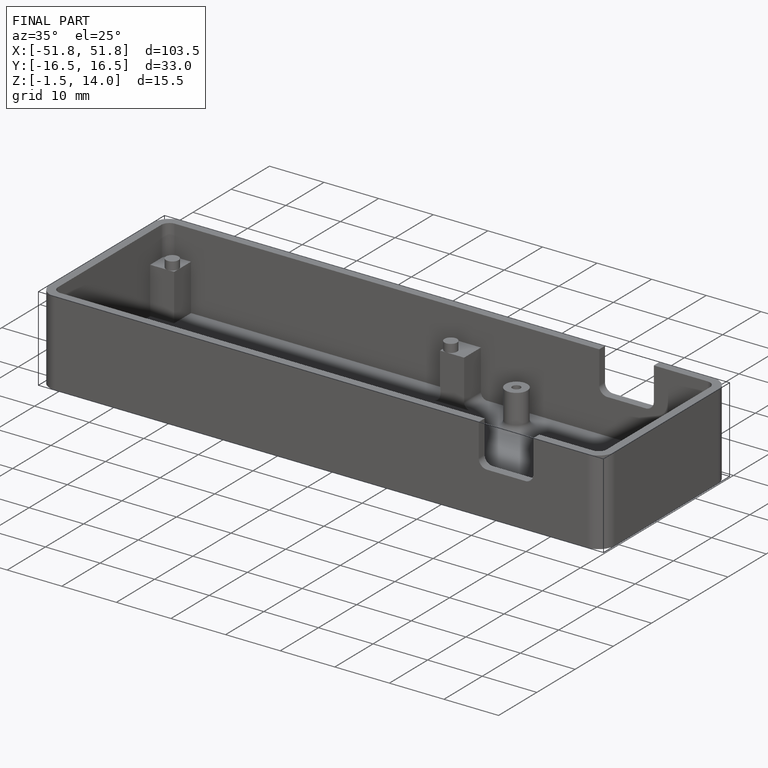
[diagram: finished part — iso view with bounding-box wireframe]
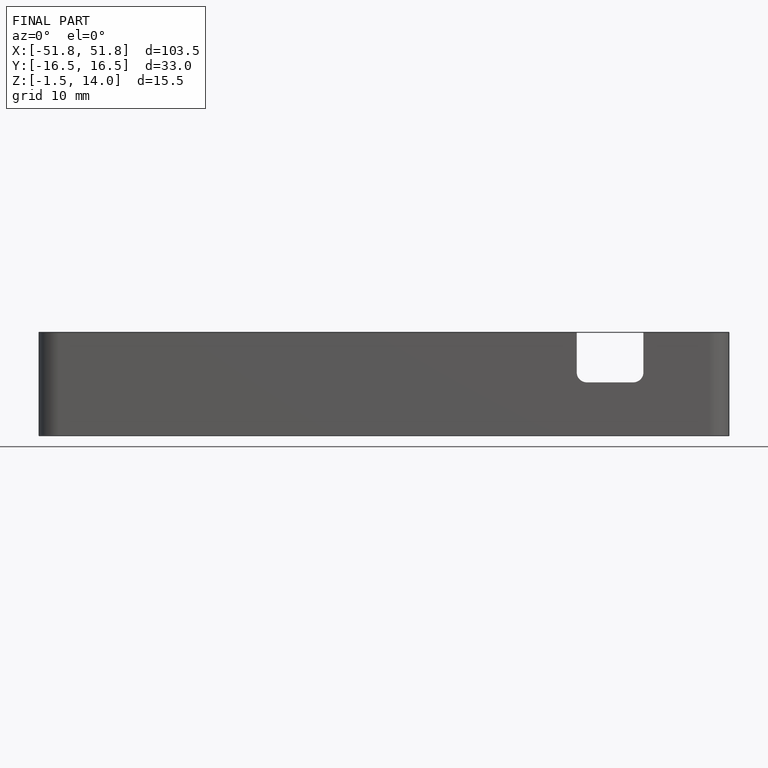
[diagram: finished part — front view with bounding-box wireframe]
